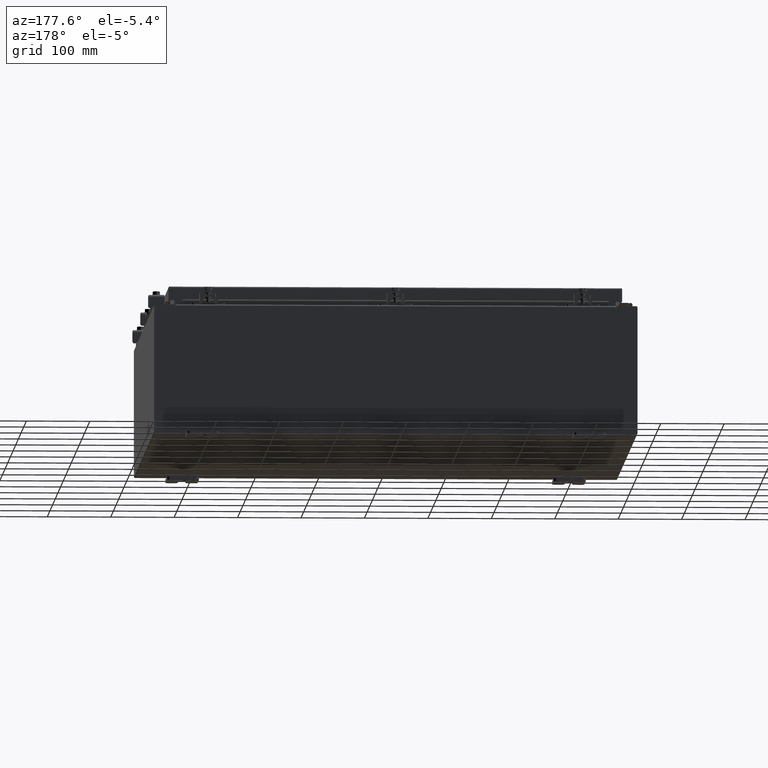
[diagram: clean part render]
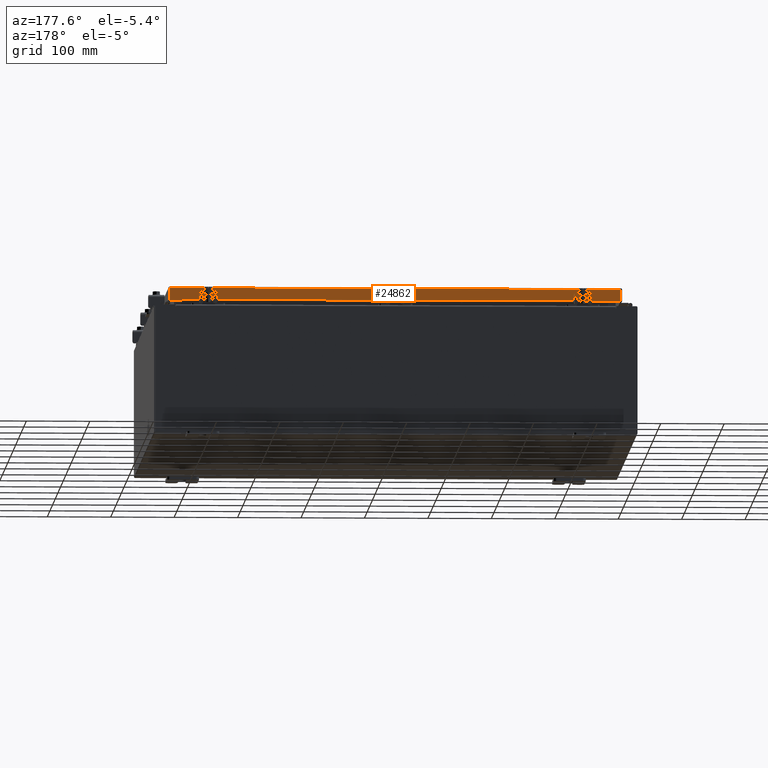
[diagram: same view with one face highlighted and labeled with its STEP entity id]
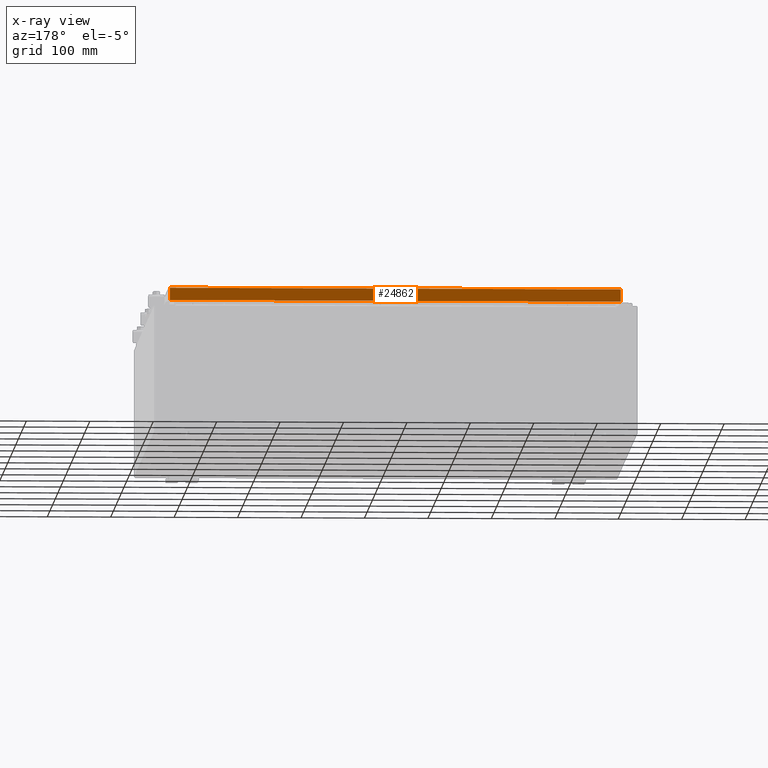
[diagram: x-ray of the same camera — body ghosted, the highlighted face saturated]
A machine part, auxiliary view. The second image highlights one B-rep face of the part: STEP entity #24862.
The next image is the same camera in x-ray: the body ghosted, the highlighted face saturated — about 0% of this face is hidden behind the body in this view.
In plain terms, the highlighted planar face has unit normal (0, -1, -0).
Its self-contained STEP definition (entity closure, byte-faithful):
#406 = LINE ( 'NONE', #18436, #31208 ) ;
#1984 = PLANE ( 'NONE',  #28982 ) ;
#2089 = ORIENTED_EDGE ( 'NONE', *, *, #10624, .F. ) ;
#3604 = VECTOR ( 'NONE', #11222, 39.37007874015748100 ) ;
#4579 = VECTOR ( 'NONE', #36888, 39.37007874015748100 ) ;
#4948 = DIRECTION ( 'NONE',  ( 3.555540745226020000E-031, -1.000000000000000000, -2.818880942772347100E-015 ) ) ;
#5004 = EDGE_CURVE ( 'NONE', #8930, #12404, #16696, .T. ) ;
#8751 = VECTOR ( 'NONE', #33348, 39.37007874015748100 ) ;
#8930 = VERTEX_POINT ( 'NONE', #37905 ) ;
#9182 = VECTOR ( 'NONE', #15348, 39.37007874015748100 ) ;
#10624 = EDGE_CURVE ( 'NONE', #26070, #30209, #26315, .T. ) ;
#11185 = CARTESIAN_POINT ( 'NONE',  ( -14.07799999999999800, 14.09399999999999600, -0.8500000000000032000 ) ) ;
#11222 = DIRECTION ( 'NONE',  ( 1.000000000000000000, -0.0000000000000000000, -0.0000000000000000000 ) ) ;
#11395 = VECTOR ( 'NONE', #26035, 39.37007874015748100 ) ;
#11974 = CARTESIAN_POINT ( 'NONE',  ( -13.23915786437626900, 14.09399999999998300, -0.8500000000000050800 ) ) ;
#12359 = CARTESIAN_POINT ( 'NONE',  ( -14.07799999999999800, 14.09399999999999600, -0.8500000000000032000 ) ) ;
#12404 = VERTEX_POINT ( 'NONE', #25680 ) ;
#12543 = LINE ( 'NONE', #16101, #4579 ) ;
#12655 = VERTEX_POINT ( 'NONE', #11974 ) ;
#13762 = CARTESIAN_POINT ( 'NONE',  ( 13.23915786437627200, 14.09399999999998300, -0.8500000000000050800 ) ) ;
#14857 = CARTESIAN_POINT ( 'NONE',  ( 13.98915786437627400, 14.09399999999999600, -0.8499999999999996400 ) ) ;
#15348 = DIRECTION ( 'NONE',  ( 1.000000000000000000, -0.0000000000000000000, 1.261330583805775800E-016 ) ) ;
#15498 = ORIENTED_EDGE ( 'NONE', *, *, #5004, .F. ) ;
#15587 = DIRECTION ( 'NONE',  ( -0.0000000000000000000, 2.818880942772347100E-015, -1.000000000000000000 ) ) ;
#16101 = CARTESIAN_POINT ( 'NONE',  ( 13.98915786437627100, 14.09399999999999400, 3.999012166344502700E-014 ) ) ;
#16696 = LINE ( 'NONE', #37469, #8751 ) ;
#18436 = CARTESIAN_POINT ( 'NONE',  ( -13.98915786437626700, 14.09399999999999400, -0.07469999999999978000 ) ) ;
#21593 = FACE_OUTER_BOUND ( 'NONE', #33076, .T. ) ;
#22522 = VERTEX_POINT ( 'NONE', #30750 ) ;
#22831 = CARTESIAN_POINT ( 'NONE',  ( -5.011179126321550600E-030, 14.09399999999999400, 3.999012166344502700E-014 ) ) ;
#24862 = ADVANCED_FACE ( 'NONE', ( #21593 ), #1984, .F. ) ;
#25680 = CARTESIAN_POINT ( 'NONE',  ( -13.98915786437626900, 14.09399999999999400, -0.08769999999999897300 ) ) ;
#25840 = DIRECTION ( 'NONE',  ( 0.0000000000000000000, 2.818880942772347100E-015, -1.000000000000000000 ) ) ;
#26035 = DIRECTION ( 'NONE',  ( 1.000000000000000000, -0.0000000000000000000, 1.261330583805775800E-016 ) ) ;
#26070 = VERTEX_POINT ( 'NONE', #13762 ) ;
#26315 = LINE ( 'NONE', #11185, #11395 ) ;
#27399 = LINE ( 'NONE', #32071, #3604 ) ;
#28314 = EDGE_CURVE ( 'NONE', #12655, #26070, #27399, .T. ) ;
#28967 = ORIENTED_EDGE ( 'NONE', *, *, #28314, .F. ) ;
#28982 = AXIS2_PLACEMENT_3D ( 'NONE', #22831, #4948, #25840 ) ;
#29109 = ORIENTED_EDGE ( 'NONE', *, *, #37863, .T. ) ;
#29720 = ORIENTED_EDGE ( 'NONE', *, *, #32720, .F. ) ;
#30209 = VERTEX_POINT ( 'NONE', #14857 ) ;
#30750 = CARTESIAN_POINT ( 'NONE',  ( -13.98915786437626700, 14.09399999999999600, -0.8500000000000032000 ) ) ;
#31208 = VECTOR ( 'NONE', #15587, 39.37007874015748100 ) ;
#32071 = CARTESIAN_POINT ( 'NONE',  ( -13.23915786437626900, 14.09399999999998300, -0.8500000000000050800 ) ) ;
#32720 = EDGE_CURVE ( 'NONE', #22522, #12655, #32991, .T. ) ;
#32991 = LINE ( 'NONE', #12359, #9182 ) ;
#33076 = EDGE_LOOP ( 'NONE', ( #15498, #29109, #2089, #28967, #29720, #33514 ) ) ;
#33348 = DIRECTION ( 'NONE',  ( -1.000000000000000000, -1.367515671240777000E-031, -7.762034361881697200E-017 ) ) ;
#33514 = ORIENTED_EDGE ( 'NONE', *, *, #37752, .F. ) ;
#36888 = DIRECTION ( 'NONE',  ( 0.0000000000000000000, 2.818880942772347100E-015, -1.000000000000000000 ) ) ;
#37469 = CARTESIAN_POINT ( 'NONE',  ( -14.07799999999999800, 14.09399999999999400, -0.08770000000000007000 ) ) ;
#37752 = EDGE_CURVE ( 'NONE', #12404, #22522, #406, .T. ) ;
#37863 = EDGE_CURVE ( 'NONE', #8930, #30209, #12543, .T. ) ;
#37905 = CARTESIAN_POINT ( 'NONE',  ( 13.98915786437627400, 14.09399999999999400, -0.08769999999999787700 ) ) ;